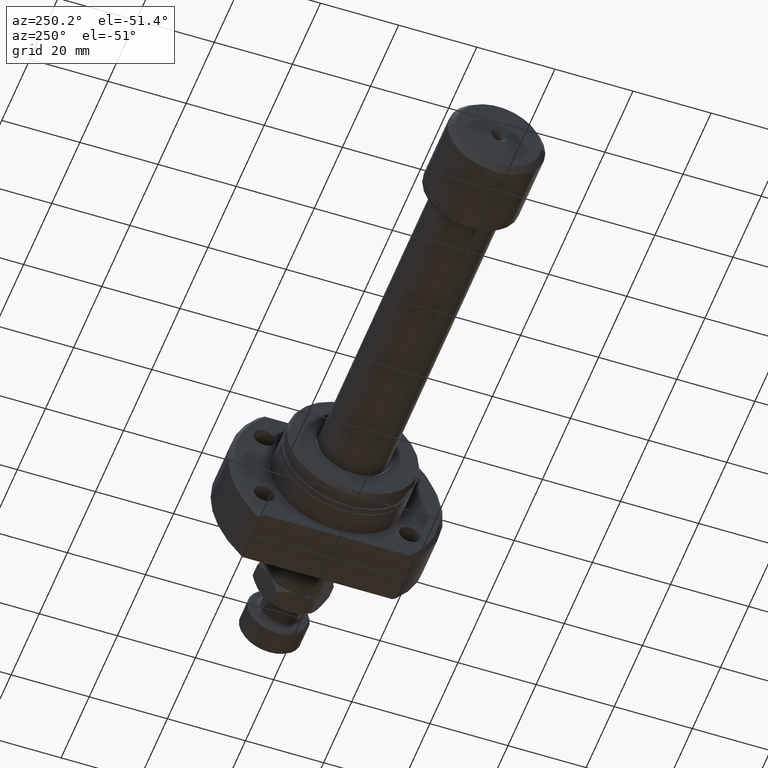
[diagram: clean part render]
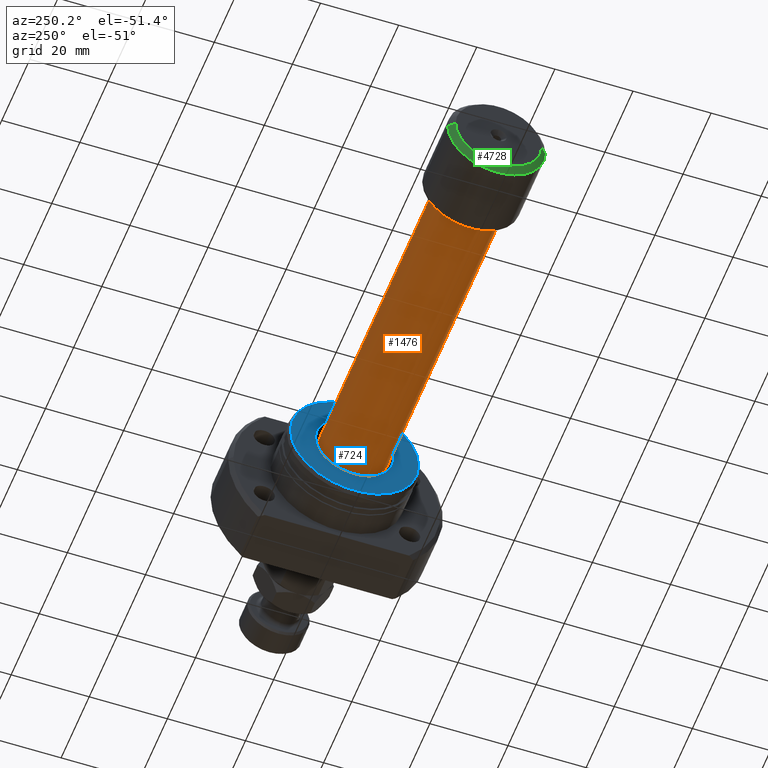
[diagram: same view with three faces highlighted in distinct colors, each labeled with its STEP entity id]
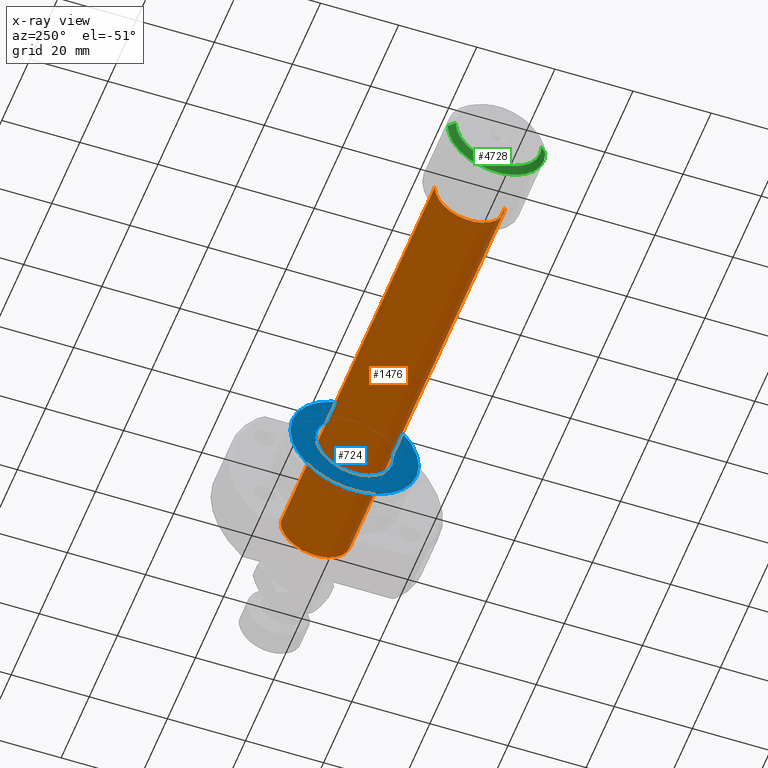
[diagram: x-ray of the same camera — body ghosted, the three highlighted faces saturated]
A machine part, auxiliary view with three faces highlighted in distinct colors.
The next image is the same camera in x-ray (body ghosted, the three faces saturated) — at least one of them is partly hidden behind the body in this view.
Their STEP definitions:

[orange] entity #1476 — the highlighted cylindrical surface (partial cylindrical patch) has radius 9 mm, axis along (-1, -0, -0).
#35 = ORIENTED_EDGE ( 'NONE', *, *, #4555, .T. ) ;
#158 = CARTESIAN_POINT ( 'NONE',  ( 20.39999999999999503, 9.000000000000000000, 1.102182119232623630E-15 ) ) ;
#185 = DIRECTION ( 'NONE',  ( 0.000000000000000000, -1.000000000000000000, 0.000000000000000000 ) ) ;
#191 = FACE_OUTER_BOUND ( 'NONE', #3553, .T. ) ;
#218 = AXIS2_PLACEMENT_3D ( 'NONE', #1563, #2318, #1207 ) ;
#271 = LINE ( 'NONE', #3281, #690 ) ;
#368 = LINE ( 'NONE', #1128, #4448 ) ;
#403 = CARTESIAN_POINT ( 'NONE',  ( 130.0667575123237611, 9.000000000000195399, 1.102182119232641774E-15 ) ) ;
#421 = ORIENTED_EDGE ( 'NONE', *, *, #3379, .F. ) ;
#611 = DIRECTION ( 'NONE',  ( 1.069542322069065955E-17, -1.000000000000000000, 0.000000000000000000 ) ) ;
#690 = VECTOR ( 'NONE', #4453, 1000.000000000000000 ) ;
#693 = AXIS2_PLACEMENT_3D ( 'NONE', #2810, #1286, #185 ) ;
#1128 = CARTESIAN_POINT ( 'NONE',  ( -9.625880898621698056E-17, 9.000000000000097700, 1.102182119232629941E-15 ) ) ;
#1133 = VERTEX_POINT ( 'NONE', #2903 ) ;
#1207 = DIRECTION ( 'NONE',  ( 0.000000000000000000, -1.000000000000000000, 0.000000000000000000 ) ) ;
#1286 = DIRECTION ( 'NONE',  ( -1.000000000000000000, -1.069542322069065801E-17, -0.000000000000000000 ) ) ;
#1310 = CIRCLE ( 'NONE', #218, 9.000000000000195399 ) ;
#1407 = AXIS2_PLACEMENT_3D ( 'NONE', #2919, #4032, #611 ) ;
#1476 = ADVANCED_FACE ( 'NONE', ( #191 ), #3582, .T. ) ;
#1563 = CARTESIAN_POINT ( 'NONE',  ( 130.0667575123237611, 1.391119018537248741E-15, 0.000000000000000000 ) ) ;
#1643 = CIRCLE ( 'NONE', #693, 9.000000000000000000 ) ;
#2249 = CARTESIAN_POINT ( 'NONE',  ( 130.0667575123237611, -9.000000000000193623, 0.000000000000000000 ) ) ;
#2318 = DIRECTION ( 'NONE',  ( -1.000000000000000000, -1.069542322069065801E-17, -0.000000000000000000 ) ) ;
#2721 = ORIENTED_EDGE ( 'NONE', *, *, #4781, .F. ) ;
#2810 = CARTESIAN_POINT ( 'NONE',  ( 20.39999999999999503, 2.181866337020893623E-16, 0.000000000000000000 ) ) ;
#2903 = CARTESIAN_POINT ( 'NONE',  ( 20.39999999999999503, -9.000000000000000000, 0.000000000000000000 ) ) ;
#2919 = CARTESIAN_POINT ( 'NONE',  ( 0.000000000000000000, 0.000000000000000000, 0.000000000000000000 ) ) ;
#3012 = VERTEX_POINT ( 'NONE', #403 ) ;
#3281 = CARTESIAN_POINT ( 'NONE',  ( 9.625880898621698056E-17, -9.000000000000097700, 0.000000000000000000 ) ) ;
#3379 = EDGE_CURVE ( 'NONE', #3012, #3988, #368, .T. ) ;
#3553 = EDGE_LOOP ( 'NONE', ( #421, #4345, #35, #2721 ) ) ;
#3582 = CYLINDRICAL_SURFACE ( 'NONE', #1407, 9.000000000000097700 ) ;
#3815 = VERTEX_POINT ( 'NONE', #2249 ) ;
#3988 = VERTEX_POINT ( 'NONE', #158 ) ;
#4012 = DIRECTION ( 'NONE',  ( -1.000000000000000000, -1.069542322069065801E-17, -0.000000000000000000 ) ) ;
#4032 = DIRECTION ( 'NONE',  ( -1.000000000000000000, -1.069542322069065801E-17, -0.000000000000000000 ) ) ;
#4345 = ORIENTED_EDGE ( 'NONE', *, *, #4347, .T. ) ;
#4347 = EDGE_CURVE ( 'NONE', #3012, #3815, #1310, .T. ) ;
#4448 = VECTOR ( 'NONE', #4012, 1000.000000000000000 ) ;
#4453 = DIRECTION ( 'NONE',  ( -1.000000000000000000, -1.069542322069065801E-17, -0.000000000000000000 ) ) ;
#4555 = EDGE_CURVE ( 'NONE', #3815, #1133, #271, .T. ) ;
#4781 = EDGE_CURVE ( 'NONE', #3988, #1133, #1643, .T. ) ;

[blue] entity #724 — the highlighted planar face has unit normal (1, 0, 0).
#72 = AXIS2_PLACEMENT_3D ( 'NONE', #4047, #4396, #2624 ) ;
#164 = DIRECTION ( 'NONE',  ( -9.242617352055494682E-18, 1.000000000000000000, 0.000000000000000000 ) ) ;
#297 = VERTEX_POINT ( 'NONE', #1795 ) ;
#401 = ORIENTED_EDGE ( 'NONE', *, *, #2603, .T. ) ;
#724 = ADVANCED_FACE ( 'NONE', ( #3684, #4130 ), #3323, .F. ) ;
#862 = CIRCLE ( 'NONE', #1500, 16.42264973081037027 ) ;
#996 = CARTESIAN_POINT ( 'NONE',  ( 3.621235219322331921E-15, -16.42264973081037027, 2.046547050593003144E-15 ) ) ;
#1167 = CARTESIAN_POINT ( 'NONE',  ( 9.297031376334609942E-16, 7.380088410503559366E-29, 0.000000000000000000 ) ) ;
#1375 = AXIS2_PLACEMENT_3D ( 'NONE', #1167, #3119, #2689 ) ;
#1482 = EDGE_LOOP ( 'NONE', ( #2708, #2557 ) ) ;
#1500 = AXIS2_PLACEMENT_3D ( 'NONE', #3527, #2859, #164 ) ;
#1546 = CIRCLE ( 'NONE', #3424, 16.42264973081037027 ) ;
#1795 = CARTESIAN_POINT ( 'NONE',  ( 9.297031376334609942E-16, -9.999999999999717559, 0.000000000000000000 ) ) ;
#1831 = EDGE_CURVE ( 'NONE', #2319, #2333, #862, .T. ) ;
#2003 = EDGE_CURVE ( 'NONE', #297, #2952, #4111, .T. ) ;
#2022 = DIRECTION ( 'NONE',  ( -9.242617352055494682E-18, 1.000000000000000000, 0.000000000000000000 ) ) ;
#2097 = CARTESIAN_POINT ( 'NONE',  ( 3.317658684584896851E-15, 16.42264973081037027, 0.000000000000000000 ) ) ;
#2146 = EDGE_CURVE ( 'NONE', #2333, #2319, #1546, .T. ) ;
#2319 = VERTEX_POINT ( 'NONE', #2097 ) ;
#2333 = VERTEX_POINT ( 'NONE', #996 ) ;
#2557 = ORIENTED_EDGE ( 'NONE', *, *, #2146, .F. ) ;
#2597 = CARTESIAN_POINT ( 'NONE',  ( 9.297031376334609942E-16, 7.380088410503559366E-29, 0.000000000000000000 ) ) ;
#2603 = EDGE_CURVE ( 'NONE', #2952, #297, #3495, .T. ) ;
#2624 = DIRECTION ( 'NONE',  ( -9.242617352055502386E-18, 1.000000000000000000, 0.000000000000000000 ) ) ;
#2689 = DIRECTION ( 'NONE',  ( -9.242617352055507008E-18, 1.000000000000000000, 0.000000000000000000 ) ) ;
#2708 = ORIENTED_EDGE ( 'NONE', *, *, #1831, .F. ) ;
#2859 = DIRECTION ( 'NONE',  ( 1.000000000000000000, 9.242617352055502386E-18, -0.000000000000000000 ) ) ;
#2952 = VERTEX_POINT ( 'NONE', #2972 ) ;
#2972 = CARTESIAN_POINT ( 'NONE',  ( 9.297031376334609942E-16, 10.00000000000029310, 1.224646799147388952E-15 ) ) ;
#3119 = DIRECTION ( 'NONE',  ( 1.000000000000000000, 9.242617352055502386E-18, -0.000000000000000000 ) ) ;
#3323 = PLANE ( 'NONE',  #72 ) ;
#3424 = AXIS2_PLACEMENT_3D ( 'NONE', #4158, #4240, #2022 ) ;
#3495 = CIRCLE ( 'NONE', #1375, 10.00000000000029310 ) ;
#3527 = CARTESIAN_POINT ( 'NONE',  ( 3.469446951953614189E-15, 4.814824860968089633E-32, 0.000000000000000000 ) ) ;
#3684 = FACE_BOUND ( 'NONE', #3981, .T. ) ;
#3686 = DIRECTION ( 'NONE',  ( -9.242617352055507008E-18, 1.000000000000000000, 0.000000000000000000 ) ) ;
#3981 = EDGE_LOOP ( 'NONE', ( #4237, #401 ) ) ;
#4047 = CARTESIAN_POINT ( 'NONE',  ( 9.297031376334383144E-16, 8.592890352151261741E-33, 0.000000000000000000 ) ) ;
#4048 = DIRECTION ( 'NONE',  ( 1.000000000000000000, 9.242617352055502386E-18, -0.000000000000000000 ) ) ;
#4111 = CIRCLE ( 'NONE', #4820, 10.00000000000029310 ) ;
#4130 = FACE_OUTER_BOUND ( 'NONE', #1482, .T. ) ;
#4158 = CARTESIAN_POINT ( 'NONE',  ( 3.469446951953614189E-15, 4.814824860968089633E-32, 0.000000000000000000 ) ) ;
#4237 = ORIENTED_EDGE ( 'NONE', *, *, #2003, .T. ) ;
#4240 = DIRECTION ( 'NONE',  ( 1.000000000000000000, 9.242617352055502386E-18, -0.000000000000000000 ) ) ;
#4396 = DIRECTION ( 'NONE',  ( 1.000000000000000000, 9.242617352055502386E-18, -0.000000000000000000 ) ) ;
#4820 = AXIS2_PLACEMENT_3D ( 'NONE', #2597, #4048, #3686 ) ;

[green] entity #4728 — the highlighted conical surface has half-angle 45 deg.
#77 = ORIENTED_EDGE ( 'NONE', *, *, #3736, .T. ) ;
#194 = DIRECTION ( 'NONE',  ( 1.069542322069065647E-17, -1.000000000000000000, 0.000000000000000000 ) ) ;
#371 = AXIS2_PLACEMENT_3D ( 'NONE', #4516, #2276, #3707 ) ;
#462 = EDGE_CURVE ( 'NONE', #1676, #2535, #1911, .T. ) ;
#496 = DIRECTION ( 'NONE',  ( 0.7071067811865477948, 0.7071067811865473507, 0.000000000000000000 ) ) ;
#552 = EDGE_LOOP ( 'NONE', ( #3681, #2891, #1727, #77 ) ) ;
#807 = DIRECTION ( 'NONE',  ( 0.7071067811865477948, -0.7071067811865473507, 8.659560562354931626E-17 ) ) ;
#870 = LINE ( 'NONE', #2391, #1778 ) ;
#953 = DIRECTION ( 'NONE',  ( 1.000000000000000000, 1.069542322069065801E-17, 0.000000000000000000 ) ) ;
#994 = CIRCLE ( 'NONE', #371, 12.50000000000000000 ) ;
#1332 = CARTESIAN_POINT ( 'NONE',  ( 1.111812168206894135E-15, 11.00000000000000178, 0.000000000000000000 ) ) ;
#1374 = CARTESIAN_POINT ( 'NONE',  ( 1.500000000000001332, 12.50000000000000000, 0.000000000000000000 ) ) ;
#1461 = VERTEX_POINT ( 'NONE', #1374 ) ;
#1676 = VERTEX_POINT ( 'NONE', #3133 ) ;
#1727 = ORIENTED_EDGE ( 'NONE', *, *, #2613, .T. ) ;
#1778 = VECTOR ( 'NONE', #496, 999.9999999999998863 ) ;
#1911 = LINE ( 'NONE', #3106, #4797 ) ;
#2276 = DIRECTION ( 'NONE',  ( -1.000000000000000000, -1.069542322069065801E-17, -0.000000000000000000 ) ) ;
#2286 = CIRCLE ( 'NONE', #3588, 11.00000000000000178 ) ;
#2391 = CARTESIAN_POINT ( 'NONE',  ( 1.111812168206894135E-15, 11.00000000000000178, 0.000000000000000000 ) ) ;
#2493 = DIRECTION ( 'NONE',  ( -1.069542322069065647E-17, 1.000000000000000000, 0.000000000000000000 ) ) ;
#2522 = CARTESIAN_POINT ( 'NONE',  ( 1.229461823634491368E-15, 1.314961453745302249E-32, 0.000000000000000000 ) ) ;
#2535 = VERTEX_POINT ( 'NONE', #3342 ) ;
#2613 = EDGE_CURVE ( 'NONE', #4454, #1461, #870, .T. ) ;
#2891 = ORIENTED_EDGE ( 'NONE', *, *, #4513, .F. ) ;
#3106 = CARTESIAN_POINT ( 'NONE',  ( 1.347111479062088602E-15, -11.00000000000000178, 1.347111479062088602E-15 ) ) ;
#3133 = CARTESIAN_POINT ( 'NONE',  ( 1.347111479062088602E-15, -11.00000000000000178, 1.438959988998140160E-15 ) ) ;
#3342 = CARTESIAN_POINT ( 'NONE',  ( 1.500000000000001776, -12.50000000000000000, 1.530808498934191521E-15 ) ) ;
#3547 = FACE_OUTER_BOUND ( 'NONE', #552, .T. ) ;
#3559 = DIRECTION ( 'NONE',  ( -1.000000000000000000, -1.069542322069065801E-17, -0.000000000000000000 ) ) ;
#3588 = AXIS2_PLACEMENT_3D ( 'NONE', #3982, #3559, #194 ) ;
#3681 = ORIENTED_EDGE ( 'NONE', *, *, #462, .F. ) ;
#3707 = DIRECTION ( 'NONE',  ( 1.734723475976807094E-17, -1.000000000000000000, 0.000000000000000000 ) ) ;
#3736 = EDGE_CURVE ( 'NONE', #1461, #2535, #994, .T. ) ;
#3982 = CARTESIAN_POINT ( 'NONE',  ( 1.229461823634491368E-15, 1.314961453745302249E-32, 0.000000000000000000 ) ) ;
#4454 = VERTEX_POINT ( 'NONE', #1332 ) ;
#4513 = EDGE_CURVE ( 'NONE', #4454, #1676, #2286, .T. ) ;
#4516 = CARTESIAN_POINT ( 'NONE',  ( 1.500000000000001554, 1.604313483103600319E-17, 0.000000000000000000 ) ) ;
#4619 = CONICAL_SURFACE ( 'NONE', #4700, 11.00000000000000178, 0.7853981633974480570 ) ;
#4700 = AXIS2_PLACEMENT_3D ( 'NONE', #2522, #953, #2493 ) ;
#4728 = ADVANCED_FACE ( 'NONE', ( #3547 ), #4619, .T. ) ;
#4797 = VECTOR ( 'NONE', #807, 999.9999999999998863 ) ;